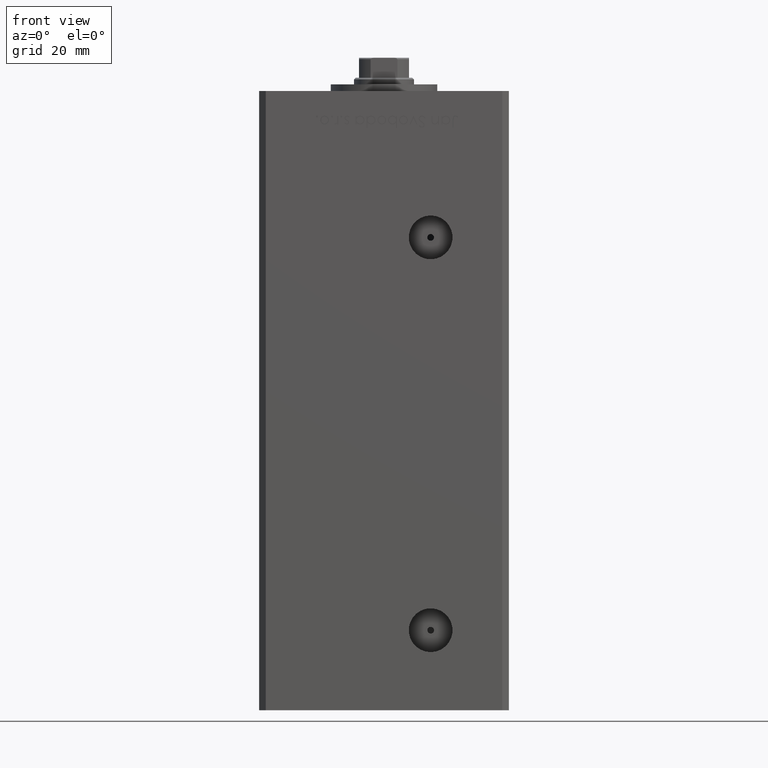
[diagram: clean part render]
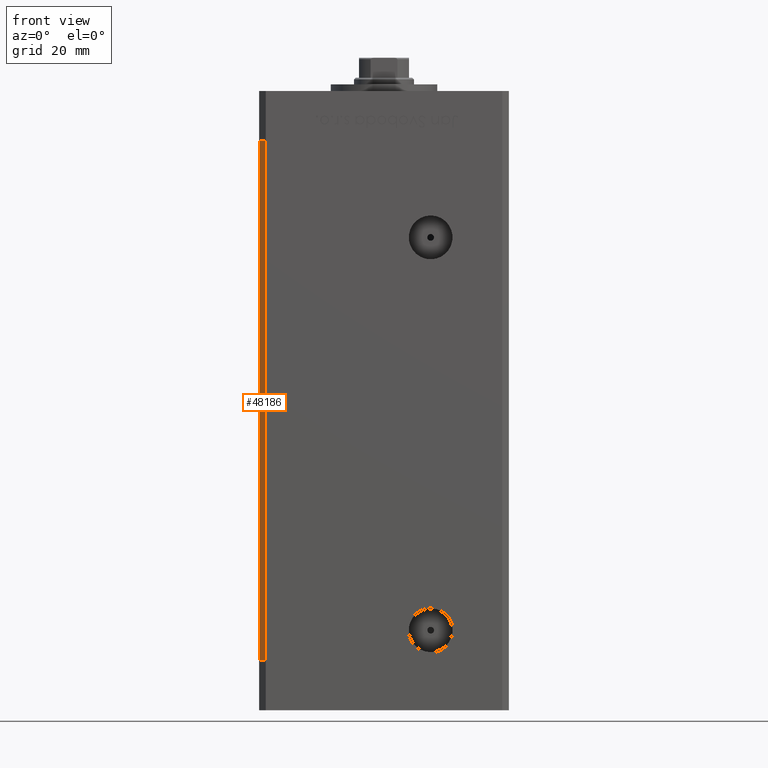
[diagram: same view with one face highlighted and labeled with its STEP entity id]
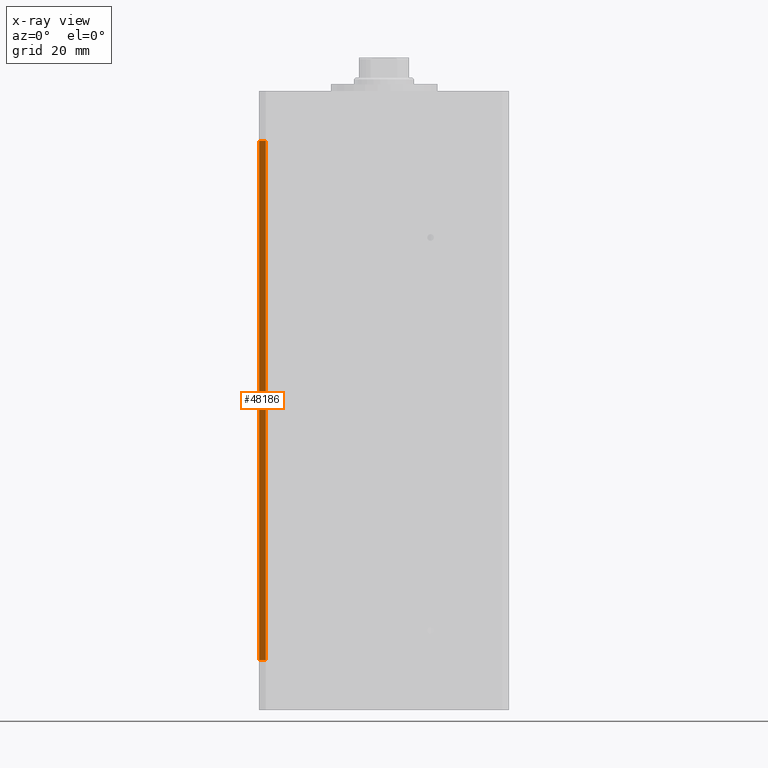
[diagram: x-ray of the same camera — body ghosted, the highlighted face saturated]
A machine part, front view. The second image highlights one B-rep face of the part: STEP entity #48186.
The next image is the same camera in x-ray: the body ghosted, the highlighted face saturated — about 0% of this face is hidden behind the body in this view.
In plain terms, the highlighted planar face has unit normal (0.7071, 0.7071, 0).
Its self-contained STEP definition (entity closure, byte-faithful):
#49 = VECTOR ( 'NONE', #50457, 1000.000000000000114 ) ;
#291 = CARTESIAN_POINT ( 'NONE',  ( -37.49999999999999289, -30.50000000000000000, 0.000000000000000000 ) ) ;
#1548 = VECTOR ( 'NONE', #17020, 1000.000000000000114 ) ;
#1677 = VERTEX_POINT ( 'NONE', #28138 ) ;
#3395 = DIRECTION ( 'NONE',  ( -0.000000000000000000, -0.000000000000000000, -1.000000000000000000 ) ) ;
#4713 = DIRECTION ( 'NONE',  ( -0.000000000000000000, -0.000000000000000000, -1.000000000000000000 ) ) ;
#7340 = LINE ( 'NONE', #23454, #40878 ) ;
#7600 = CARTESIAN_POINT ( 'NONE',  ( -37.49999999999999289, -30.50000000000000000, 156.0000000000000000 ) ) ;
#7906 = EDGE_CURVE ( 'NONE', #12626, #17556, #7340, .T. ) ;
#8678 = CARTESIAN_POINT ( 'NONE',  ( -37.49999999999999289, -30.50000000000000000, 156.0000000000000000 ) ) ;
#10507 = CARTESIAN_POINT ( 'NONE',  ( -35.49999999999999289, -32.50000000000000000, 0.000000000000000000 ) ) ;
#12626 = VERTEX_POINT ( 'NONE', #34856 ) ;
#15372 = ORIENTED_EDGE ( 'NONE', *, *, #41537, .F. ) ;
#16215 = EDGE_LOOP ( 'NONE', ( #39381, #47997, #15372, #27032 ) ) ;
#17020 = DIRECTION ( 'NONE',  ( 0.7071067811865474617, -0.7071067811865474617, 0.000000000000000000 ) ) ;
#17085 = VERTEX_POINT ( 'NONE', #291 ) ;
#17556 = VERTEX_POINT ( 'NONE', #10507 ) ;
#17796 = LINE ( 'NONE', #49732, #1548 ) ;
#17995 = LINE ( 'NONE', #50964, #49 ) ;
#18257 = EDGE_CURVE ( 'NONE', #1677, #17085, #32718, .T. ) ;
#20304 = AXIS2_PLACEMENT_3D ( 'NONE', #7600, #47725, #40348 ) ;
#23454 = CARTESIAN_POINT ( 'NONE',  ( -35.49999999999999289, -32.50000000000000000, 156.0000000000000000 ) ) ;
#27032 = ORIENTED_EDGE ( 'NONE', *, *, #18257, .T. ) ;
#28138 = CARTESIAN_POINT ( 'NONE',  ( -37.49999999999999289, -30.50000000000000000, 156.0000000000000000 ) ) ;
#31640 = PLANE ( 'NONE',  #20304 ) ;
#32718 = LINE ( 'NONE', #8678, #48684 ) ;
#34856 = CARTESIAN_POINT ( 'NONE',  ( -35.49999999999999289, -32.50000000000000000, 156.0000000000000000 ) ) ;
#36180 = EDGE_CURVE ( 'NONE', #17085, #17556, #17796, .T. ) ;
#39381 = ORIENTED_EDGE ( 'NONE', *, *, #36180, .T. ) ;
#40348 = DIRECTION ( 'NONE',  ( -0.7071067811865474617, 0.7071067811865474617, 0.000000000000000000 ) ) ;
#40878 = VECTOR ( 'NONE', #3395, 1000.000000000000000 ) ;
#41537 = EDGE_CURVE ( 'NONE', #1677, #12626, #17995, .T. ) ;
#47725 = DIRECTION ( 'NONE',  ( 0.7071067811865475727, 0.7071067811865475727, -0.000000000000000000 ) ) ;
#47987 = FACE_OUTER_BOUND ( 'NONE', #16215, .T. ) ;
#47997 = ORIENTED_EDGE ( 'NONE', *, *, #7906, .F. ) ;
#48186 = ADVANCED_FACE ( 'NONE', ( #47987 ), #31640, .F. ) ;
#48684 = VECTOR ( 'NONE', #4713, 1000.000000000000000 ) ;
#49732 = CARTESIAN_POINT ( 'NONE',  ( -37.49999999999999289, -30.50000000000000000, 0.000000000000000000 ) ) ;
#50457 = DIRECTION ( 'NONE',  ( 0.7071067811865474617, -0.7071067811865474617, 0.000000000000000000 ) ) ;
#50964 = CARTESIAN_POINT ( 'NONE',  ( -37.49999999999999289, -30.50000000000000000, 156.0000000000000000 ) ) ;